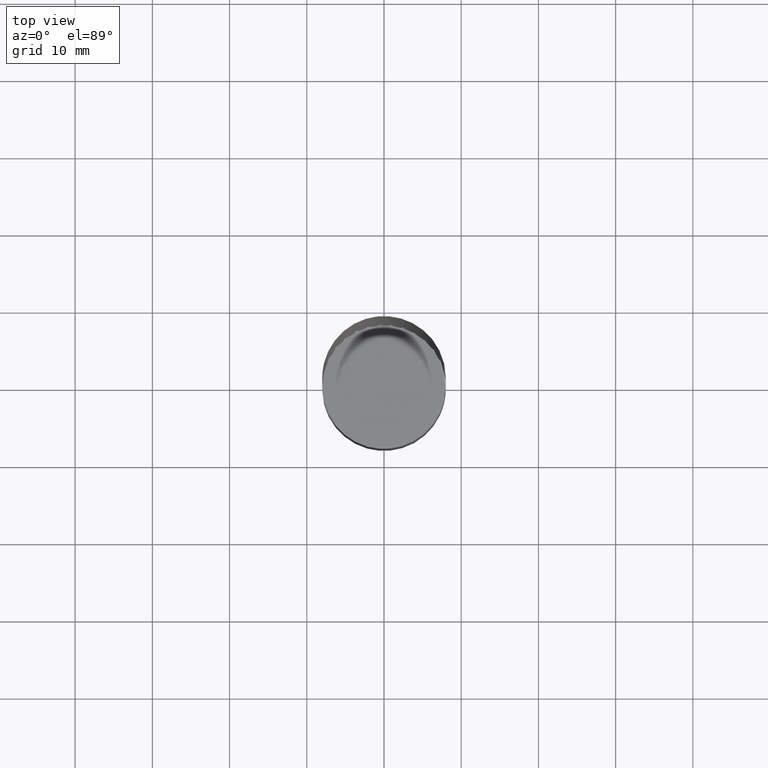
[diagram: clean part render]
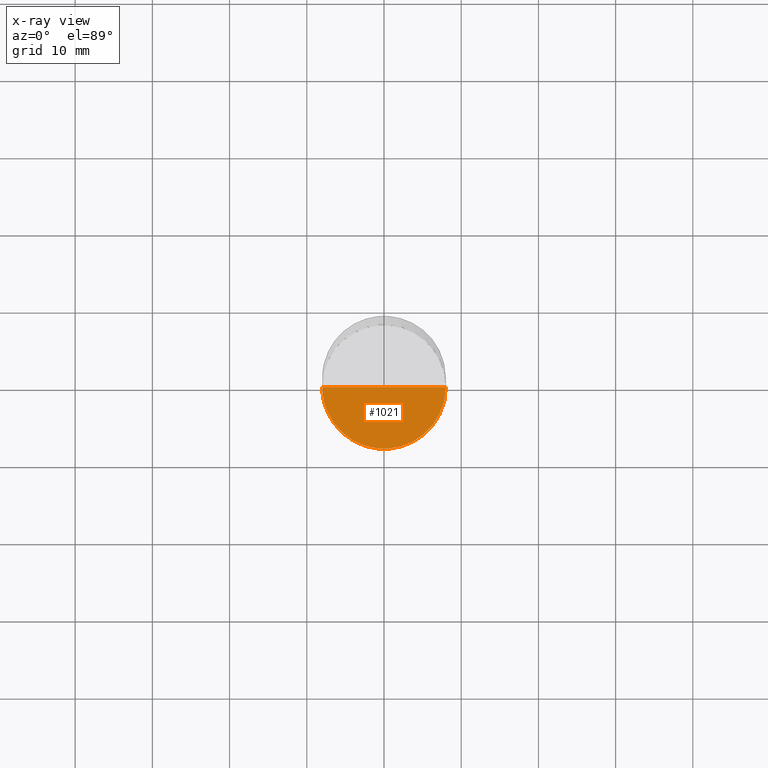
[diagram: x-ray — body ghosted, one internal face saturated and labeled with its STEP entity id]
A machine part, top view, then the same camera in x-ray: the body is ghosted and one INTERNAL B-rep face — a face not visible from any outside direction — is saturated and labeled: STEP entity #1021.
In plain terms, the highlighted face is a freeform B-spline surface patch.
Its self-contained STEP definition (entity closure, byte-faithful):
#871=CARTESIAN_POINT('',(8.0,0.0,-5.0));
#875=CARTESIAN_POINT('',(-8.0,0.0,-5.0));
#876=CARTESIAN_POINT('',(0.0,0.0,-5.0));
#883=CARTESIAN_POINT('',(-8.0,-8.0,-5.0));
#884=CARTESIAN_POINT('',(0.0,-8.0,-5.0));
#885=CARTESIAN_POINT('',(8.0,-8.0,-5.0));
#1006=(
BOUNDED_SURFACE()
B_SPLINE_SURFACE(1,2,(
(#875,#883,#884,#885,#871),
(#876,#876,#876,#876,#876)
), .UNSPECIFIED.,.F.,.F.,.F.)
B_SPLINE_SURFACE_WITH_KNOTS((2,2),(3,2,3),(
0.0,1.0),(
0.0,0.5,1.0), .UNSPECIFIED.)
GEOMETRIC_REPRESENTATION_ITEM()
RATIONAL_B_SPLINE_SURFACE(((1.0,0.707106781187,1.0,0.707106781187,1.0),
(1.0,0.707106781187,1.0,0.707106781187,1.0)
))
REPRESENTATION_ITEM('')
SURFACE()
);
#1007=(
BOUNDED_CURVE()
B_SPLINE_CURVE(2,(#871,#885,#884,#883,#875),.UNSPECIFIED.,.F.,.F.)
B_SPLINE_CURVE_WITH_KNOTS((3,2,3),
(0.0,0.5,1.0),.UNSPECIFIED.)
CURVE()
GEOMETRIC_REPRESENTATION_ITEM()
RATIONAL_B_SPLINE_CURVE((1.0,0.707106781187,1.0,0.707106781187,1.0))
REPRESENTATION_ITEM('')
);
#1008=(
BOUNDED_CURVE()
B_SPLINE_CURVE(1,(#875,#876),.UNSPECIFIED.,.F.,.F.)
B_SPLINE_CURVE_WITH_KNOTS((2,2),
(0.0,1.0),.UNSPECIFIED.)
CURVE()
GEOMETRIC_REPRESENTATION_ITEM()
RATIONAL_B_SPLINE_CURVE((1.0,1.0))
REPRESENTATION_ITEM('')
);
#1009=(
BOUNDED_CURVE()
B_SPLINE_CURVE(1,(#876,#871),.UNSPECIFIED.,.F.,.F.)
B_SPLINE_CURVE_WITH_KNOTS((2,2),
(0.0,1.0),.UNSPECIFIED.)
CURVE()
GEOMETRIC_REPRESENTATION_ITEM()
RATIONAL_B_SPLINE_CURVE((1.0,1.0))
REPRESENTATION_ITEM('')
);
#1010=VERTEX_POINT('',#871);
#1011=VERTEX_POINT('',#875);
#1012=VERTEX_POINT('',#876);
#1013=EDGE_CURVE('',#1010,#1011,#1007,.T.);
#1014=EDGE_CURVE('',#1011,#1012,#1008,.T.);
#1015=EDGE_CURVE('',#1012,#1010,#1009,.T.);
#1016=ORIENTED_EDGE('',*,*,#1013,.T.);
#1017=ORIENTED_EDGE('',*,*,#1014,.T.);
#1018=ORIENTED_EDGE('',*,*,#1015,.T.);
#1019=EDGE_LOOP('',(#1016,#1017,#1018));
#1020=FACE_OUTER_BOUND('',#1019,.T.);
#1021=ADVANCED_FACE('',(#1020),#1006,.T.);